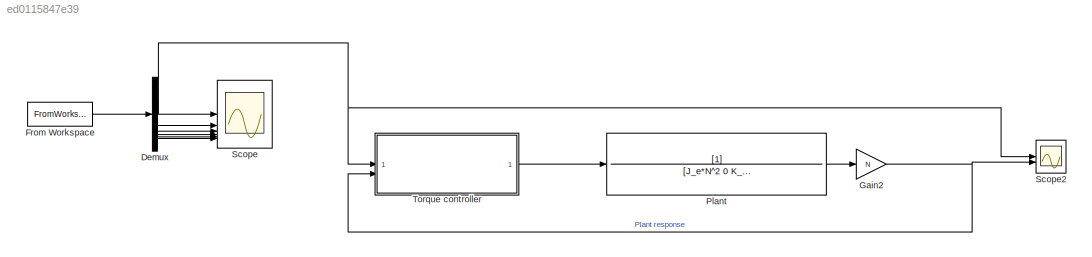
MODEL slx_ed0115847e39
KIND model
CONFIG AbsTol = 1e-6
CONFIG EnableMultiTasking = on
CONFIG FixedStep = auto
CONFIG MaxStep = 1e-6
CONFIG MinStep = auto
CONFIG RelTol = 1e-6
CONFIG SampleTimeConstraint = Unconstrained
CONFIG SolverName = VariableStepAuto
CONFIG StartTime = 0.0
CONFIG StopTime = 4.0
BLOCK [Demux] Demux
  Outputs = 6
BLOCK [FromWorkspace] From Workspace
  VariableName = motorData
BLOCK [Gain] Gain2
  Gain = N
BLOCK [TransferFcn] Plant
  Denominator = [J_e*N^2 0 K_e*N]
BLOCK [Scope] Scope
  Floating = off
  NumInputPorts = 6
  ScopeSpecificationString = Simulink.scopes.TimeScopeBlockCfg('CurrentConfiguration', extmgr.ConfigurationSet(extmgr.Configuration('Core','General UI',true),extmgr.Configuration('Core','Source UI',true),extmgr.Configuration('Sources','WiredSimulink',true,'DataLoggingVariableName','ScopeData1'),extmgr.Configuration('Visuals','Time Domain',true,'SerializedDisplays',{struct('MinYLimReal','-0.96126','MaxYLimReal','0.86589','YLab...<+1575ch>
BLOCK [Scope] Scope2
  Floating = off
  NumInputPorts = 2
  ScopeSpecificationString = Simulink.scopes.TimeScopeBlockCfg('CurrentConfiguration', extmgr.ConfigurationSet(extmgr.Configuration('Core','General UI',true),extmgr.Configuration('Core','Source UI',true),extmgr.Configuration('Sources','WiredSimulink',true,'DataLoggingVariableName','ScopeData1'),extmgr.Configuration('Visuals','Time Domain',true,'SerializedDisplays',{struct('MinYLimReal','-0.96925','MaxYLimReal','0.87792','YLab...<+1601ch>
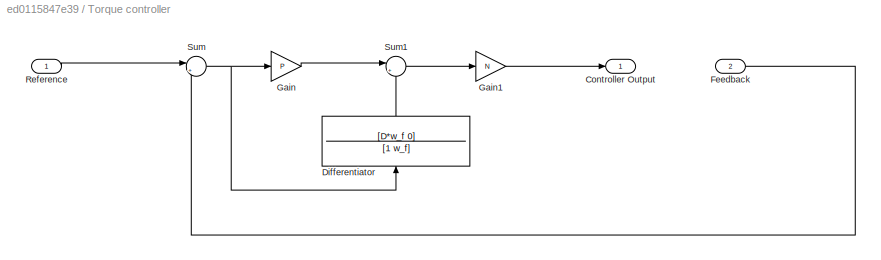
BLOCK [SubSystem] Torque controller
BLOCK [Outport] Torque controller/Controller Output
BLOCK [TransferFcn] Torque controller/Differentiator
  Denominator = [1 w_f]
  NameLocation = right
  Numerator = [D*w_f 0]
BLOCK [Inport] Torque controller/Feedback
  Port = 2
BLOCK [Gain] Torque controller/Gain
  Gain = P
BLOCK [Gain] Torque controller/Gain1
  Gain = N
BLOCK [Inport] Torque controller/Reference
BLOCK [Sum] Torque controller/Sum
  Inputs = |+-
BLOCK [Sum] Torque controller/Sum1
  Inputs = |++
NET Demux:1 -> Scope2:1, Scope:1, Torque controller:1
LINE Demux:2 -> Scope:2
LINE Demux:3 -> Scope:3
LINE Demux:4 -> Scope:4
LINE Demux:5 -> Scope:5
LINE Demux:6 -> Scope:6
LINE From Workspace:1 -> Demux:1
NET Gain2:1 -> Scope2:2, Torque controller:2
LINE Plant:1 -> Gain2:1
LINE Torque controller/Differentiator:1 -> Torque controller/Sum1:2
LINE Torque controller/Feedback:1 -> Torque controller/Sum:2
LINE Torque controller/Gain1:1 -> Torque controller/Controller Output:1
LINE Torque controller/Gain:1 -> Torque controller/Sum1:1
LINE Torque controller/Reference:1 -> Torque controller/Sum:1
LINE Torque controller/Sum1:1 -> Torque controller/Gain1:1
NET Torque controller/Sum:1 -> Torque controller/Differentiator:1, Torque controller/Gain:1
LINE Torque controller:1 -> Plant:1
note: NET lines group one-source signal fan-out (src -> all destinations, sorted); 1:1 wires keep LINE
